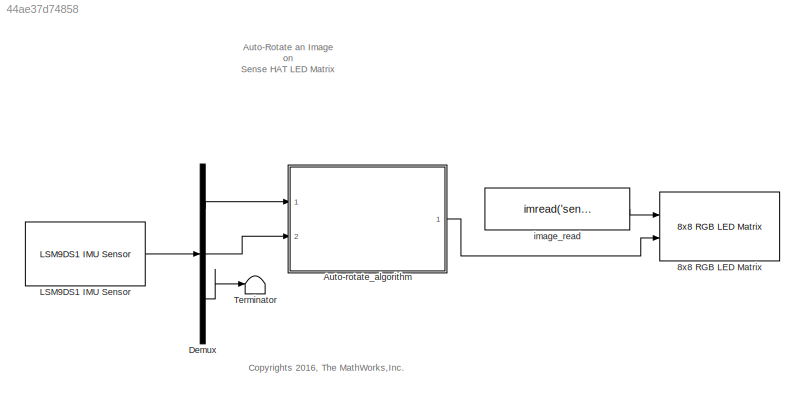
MODEL slx_44ae37d74858
KIND model
CONFIG AbsTol = auto
CONFIG EnableMultiTasking = off
CONFIG FixedStep = auto
CONFIG MaxStep = auto
CONFIG MinStep = auto
CONFIG RelTol = 1e-3
CONFIG SampleTimeConstraint = Unconstrained
CONFIG Solver = FixedStepAuto
CONFIG SolverName = FixedStepAuto
CONFIG StartTime = 0.0
CONFIG StopTime = inf
BLOCK [Reference] 8x8 RGB LED Matrix   REF=sensehatlib/8x8 RGB LED Matrix

  Ports = [2]
  SourceBlock = sensehatlib/8x8 RGB LED Matrix
  SourceProductName = Simulink Support Package for Raspberry Pi Hardware
  SourceType = 8x8 RGB LED Matrix
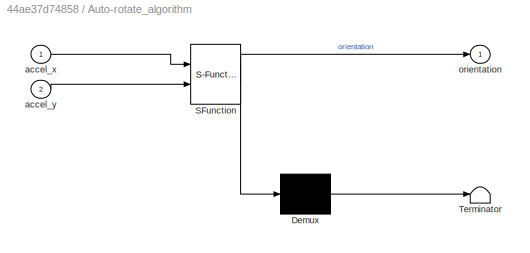
BLOCK [SubSystem] Auto-rotate_algorithm 
  ErrorFcn = Stateflow.Translate.translate
  PermitHierarchicalResolution = ExplicitOnly
  Ports = [2, 1]
  RequestExecContextInheritance = off
  SFBlockType = Chart
  TreatAsAtomicUnit = on
BLOCK [Demux] Auto-rotate_algorithm / Demux 
  Outputs = 1
  Ports = [1, 1]
BLOCK [S-Function] Auto-rotate_algorithm / SFunction 
  EnableBusSupport = off
  FunctionName = sf_sfun
  PortCounts = [2 2]
  Ports = [2, 2]
  SFcnIsStateOwnerBlock = off
  SFunctionDeploymentMode = off
  Tag = Stateflow S-Function raspberrypi_sensehat_autorotate 3
BLOCK [Terminator] Auto-rotate_algorithm / Terminator 
BLOCK [Inport] Auto-rotate_algorithm /accel_x
  IconDisplay = Port number
BLOCK [Inport] Auto-rotate_algorithm /accel_y
  IconDisplay = Port number
  Port = 2
BLOCK [Outport] Auto-rotate_algorithm /orientation
  IconDisplay = Port number
BLOCK [Demux] Demux
  DisplayOption = bar
  Outputs = 3
  Ports = [1, 3]
BLOCK [Reference] LSM9DS1 IMU Sensor  REF=sensehatlib/LSM9DS1 IMU Sensor
  Ports = [0, 1]
  SourceBlock = sensehatlib/LSM9DS1 IMU Sensor
  SourceProductName = Simulink Support Package for Raspberry Pi Hardware
  SourceType = LSM9DS1 9-DoF IMU Sensor
BLOCK [Terminator] Terminator
BLOCK [Constant] image_read
  Value = imread('senseHAT_demo.png')
ANNOTATION (root): Auto-Rotate an Image on Sense HAT LED Matrix
ANNOTATION (root): Copyrights 2016, The MathWorks,Inc.
LINE Auto-rotate_algorithm :1 -> 8x8 RGB LED Matrix :2
LINE Demux:1 -> Auto-rotate_algorithm :1
LINE Demux:2 -> Auto-rotate_algorithm :2
LINE Demux:3 -> Terminator:1
LINE LSM9DS1 IMU Sensor:1 -> Demux:1
LINE image_read:1 -> 8x8 RGB LED Matrix :1
CHART Auto-rotate_algorithm  states=4 transitions=13
  STATE_LABEL 'Orientation_180\nentry:\n orientation = uint16(180);'
  STATE_LABEL 'Orientation_0\nentry:\n orientation=uint16(0);'
  STATE_LABEL 'Orientation_90\nentry:\n orientation=uint16(90);'
  STATE_LABEL 'Orientation_270\nentry:\n orientation = uint16(270);'
